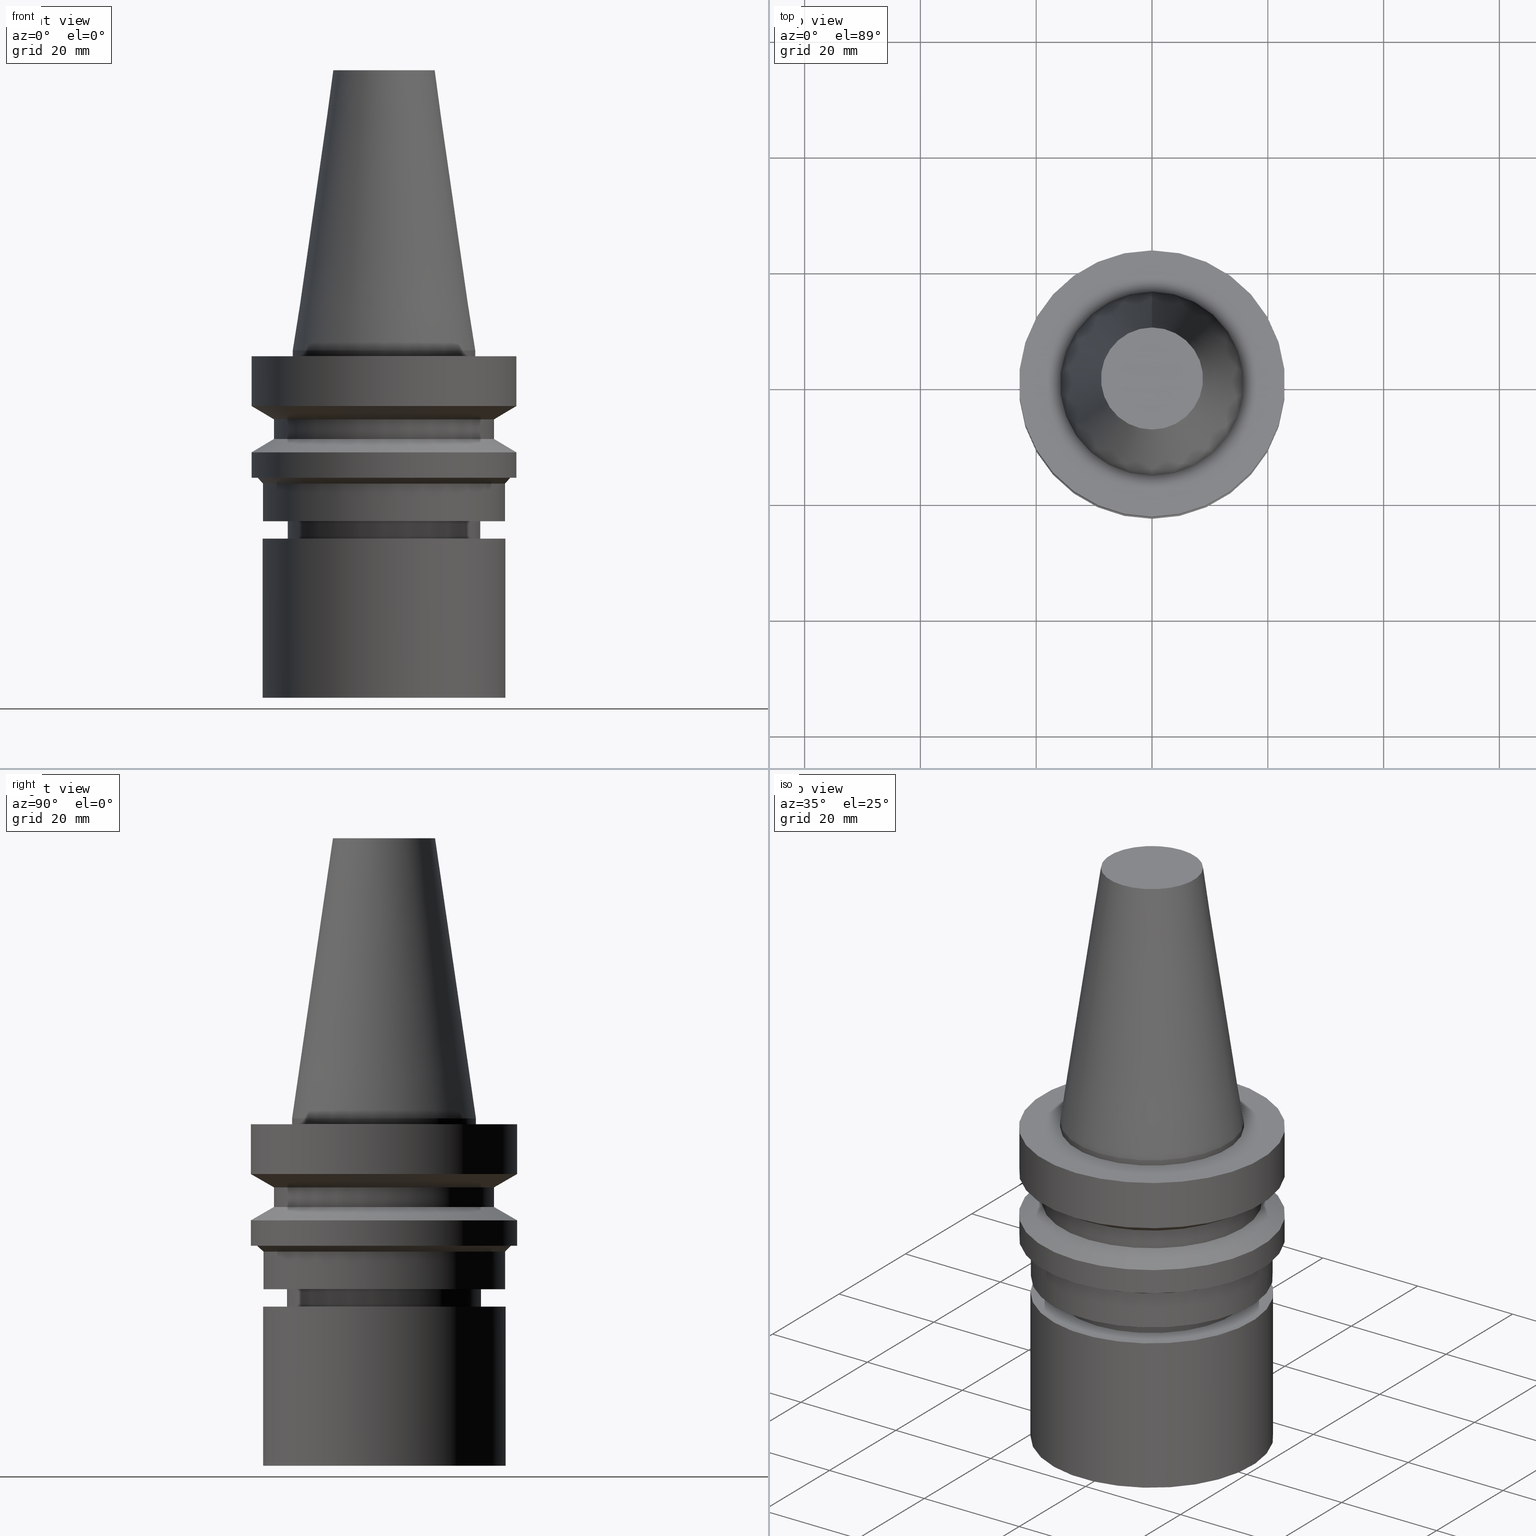
[diagram: canonical four-view strip — front | top / right | iso, engineering-drawing reading convention]
A machine part, canonical four-view strip (front | top / right | iso — engineering-drawing reading convention). The complete STEP part file that produces these views, byte-faithful:
ISO-10303-21;
HEADER;
FILE_DESCRIPTION((''),'1');
FILE_NAME('V:/90_\X2\53D65F9730C730FC30BF\X0\/00_\X2\6DE18DEF30C730FC30BF\X0\/ALL/BBT-BKUS\X2\FF76FF80FF9BFF78FF9E752852A05DE556F3\X0\201801/BBT30-MEGAER/BBT30-MEGAER25-60NL.stp','2018-02-02T07:22:10',(''),(''),'Spatial Interop R21 SP3','Kubotek KeyCreator 2011 V10.0.2 (22737)',' ');
FILE_SCHEMA(('automotive_design'));
ENDSEC;
DATA;
#1=MECHANICAL_DESIGN_GEOMETRIC_PRESENTATION_REPRESENTATION(' ',(#14,#15,#16,#17,#18,#19,#20,#21,#22,#23,#24,#25,#26,#27,#28,#29,#30,#31,#32,#33,#34,#35,#36,#37,#38,#39,#40,#41,#42,#43,#44,#45,#46,#47,#48,#49,#50,#51,#52,#53,#54,#55),#10);
#2=PRODUCT_DEFINITION_CONTEXT('',#56,'design');
#3=APPLICATION_PROTOCOL_DEFINITION('INTERNATIONAL STANDARD','automotive_design',1994,#56);
#4=PRODUCT_CATEGORY_RELATIONSHIP('NONE','NONE',#57,#58);
#5=SHAPE_DEFINITION_REPRESENTATION(#59,#60);
#6=PRODUCT_DEFINITION_CONTEXT('',#61,'design');
#7=APPLICATION_PROTOCOL_DEFINITION('INTERNATIONAL STANDARD','automotive_design',1994,#61);
#8=PRODUCT_CATEGORY_RELATIONSHIP('NONE','NONE',#62,#63);
#9=SHAPE_DEFINITION_REPRESENTATION(#64,#65);
#10= (GEOMETRIC_REPRESENTATION_CONTEXT(3)GLOBAL_UNCERTAINTY_ASSIGNED_CONTEXT((#68))GLOBAL_UNIT_ASSIGNED_CONTEXT((#70,#71,#72))REPRESENTATION_CONTEXT('NONE','WORKSPACE'));
#14=STYLED_ITEM('',(#74,#75),#76);
#15=STYLED_ITEM('',(#77,#78),#79);
#16=STYLED_ITEM('',(#80,#81),#82);
#17=STYLED_ITEM('',(#83,#84),#85);
#18=STYLED_ITEM('',(#86),#87);
#19=STYLED_ITEM('',(#88,#89),#90);
#20=STYLED_ITEM('',(#91,#92),#93);
#21=STYLED_ITEM('',(#94,#95),#96);
#22=STYLED_ITEM('',(#97,#98),#99);
#23=STYLED_ITEM('',(#100),#101);
#24=STYLED_ITEM('',(#102),#103);
#25=STYLED_ITEM('',(#104,#105),#106);
#26=STYLED_ITEM('',(#107),#108);
#27=STYLED_ITEM('',(#109),#110);
#28=STYLED_ITEM('',(#111,#112),#113);
#29=STYLED_ITEM('',(#114),#115);
#30=STYLED_ITEM('',(#116,#117),#118);
#31=STYLED_ITEM('',(#119,#120),#121);
#32=STYLED_ITEM('',(#122,#123),#124);
#33=STYLED_ITEM('',(#125),#126);
#34=STYLED_ITEM('',(#127),#128);
#35=STYLED_ITEM('',(#129,#130),#131);
#36=STYLED_ITEM('',(#132,#133),#134);
#37=STYLED_ITEM('',(#135),#136);
#38=STYLED_ITEM('',(#137,#138),#139);
#39=STYLED_ITEM('',(#140),#141);
#40=STYLED_ITEM('',(#142),#143);
#41=STYLED_ITEM('',(#144),#145);
#42=STYLED_ITEM('',(#146,#147),#148);
#43=STYLED_ITEM('',(#149),#150);
#44=STYLED_ITEM('',(#151),#152);
#45=STYLED_ITEM('',(#153,#154),#155);
#46=STYLED_ITEM('',(#156,#157),#158);
#47=STYLED_ITEM('',(#159,#160),#161);
#48=STYLED_ITEM('',(#162),#163);
#49=STYLED_ITEM('',(#164),#165);
#50=STYLED_ITEM('',(#166,#167),#168);
#51=STYLED_ITEM('',(#169),#170);
#52=STYLED_ITEM('',(#171),#172);
#53=STYLED_ITEM('',(#173,#174),#175);
#54=STYLED_ITEM('',(#176),#177);
#55=STYLED_ITEM('',(#178,#179),#180);
#56=APPLICATION_CONTEXT(' ');
#57=PRODUCT_CATEGORY('part','NONE');
#58=PRODUCT_RELATED_PRODUCT_CATEGORY('detail',' ',(#181));
#59=PRODUCT_DEFINITION_SHAPE('NONE','NONE',#182);
#60=ADVANCED_BREP_SHAPE_REPRESENTATION('Unnamed[1]',(#79,#183),#10);
#61=APPLICATION_CONTEXT(' ');
#62=PRODUCT_CATEGORY('part','NONE');
#63=PRODUCT_RELATED_PRODUCT_CATEGORY('detail',' ',(#184));
#64=PRODUCT_DEFINITION_SHAPE('NONE','NONE',#185);
#65=ADVANCED_BREP_SHAPE_REPRESENTATION('Unnamed[1]',(#99,#186),#10);
#68=UNCERTAINTY_MEASURE_WITH_UNIT(LENGTH_MEASURE(1.0E-006),#70,'','');
#70= (CONVERSION_BASED_UNIT('MILLIMETRE',#189)LENGTH_UNIT()NAMED_UNIT(#192));
#71= (NAMED_UNIT(#194)PLANE_ANGLE_UNIT()SI_UNIT($,.RADIAN.));
#72= (NAMED_UNIT(#194)SOLID_ANGLE_UNIT()SI_UNIT($,.STERADIAN.));
#74=PRESENTATION_STYLE_ASSIGNMENT((#200));
#75=PRESENTATION_STYLE_ASSIGNMENT((#201));
#76=ADVANCED_FACE('Unnamed[1]',(#202,#203),#204,.T.);
#77=PRESENTATION_STYLE_ASSIGNMENT((#205));
#78=PRESENTATION_STYLE_ASSIGNMENT((#206));
#79=MANIFOLD_SOLID_BREP('Unnamed[1]',#207);
#80=PRESENTATION_STYLE_ASSIGNMENT((#208));
#81=PRESENTATION_STYLE_ASSIGNMENT((#209));
#82=ADVANCED_FACE('Unnamed[1]',(#210),#211,.T.);
#83=PRESENTATION_STYLE_ASSIGNMENT((#212));
#84=PRESENTATION_STYLE_ASSIGNMENT((#213));
#85=ADVANCED_FACE('Unnamed[1]',(#214,#215),#216,.T.);
#86=PRESENTATION_STYLE_ASSIGNMENT((#217));
#87=EDGE_CURVE('Unnamed[1]',#218,#218,#219,.T.);
#88=PRESENTATION_STYLE_ASSIGNMENT((#220));
#89=PRESENTATION_STYLE_ASSIGNMENT((#221));
#90=ADVANCED_FACE('Unnamed[1]',(#222,#223),#224,.T.);
#91=PRESENTATION_STYLE_ASSIGNMENT((#225));
#92=PRESENTATION_STYLE_ASSIGNMENT((#226));
#93=ADVANCED_FACE('Unnamed[1]',(#227,#228),#229,.T.);
#94=PRESENTATION_STYLE_ASSIGNMENT((#230));
#95=PRESENTATION_STYLE_ASSIGNMENT((#231));
#96=ADVANCED_FACE('Unnamed[1]',(#232,#233),#234,.T.);
#97=PRESENTATION_STYLE_ASSIGNMENT((#235));
#98=PRESENTATION_STYLE_ASSIGNMENT((#236));
#99=MANIFOLD_SOLID_BREP('Unnamed[1]',#237);
#100=PRESENTATION_STYLE_ASSIGNMENT((#238));
#101=EDGE_CURVE('Unnamed[1]',#239,#239,#240,.T.);
#102=PRESENTATION_STYLE_ASSIGNMENT((#241));
#103=EDGE_CURVE('Unnamed[1]',#242,#242,#243,.T.);
#104=PRESENTATION_STYLE_ASSIGNMENT((#244));
#105=PRESENTATION_STYLE_ASSIGNMENT((#245));
#106=ADVANCED_FACE('Unnamed[1]',(#246,#247),#248,.T.);
#107=PRESENTATION_STYLE_ASSIGNMENT((#249));
#108=EDGE_CURVE('Unnamed[1]',#250,#250,#251,.T.);
#109=PRESENTATION_STYLE_ASSIGNMENT((#252));
#110=EDGE_CURVE('Unnamed[1]',#253,#253,#254,.T.);
#111=PRESENTATION_STYLE_ASSIGNMENT((#255));
#112=PRESENTATION_STYLE_ASSIGNMENT((#256));
#113=ADVANCED_FACE('Unnamed[1]',(#257),#258,.T.);
#114=PRESENTATION_STYLE_ASSIGNMENT((#259));
#115=EDGE_CURVE('Unnamed[1]',#260,#260,#261,.T.);
#116=PRESENTATION_STYLE_ASSIGNMENT((#262));
#117=PRESENTATION_STYLE_ASSIGNMENT((#263));
#118=ADVANCED_FACE('Unnamed[1]',(#264,#265),#266,.T.);
#119=PRESENTATION_STYLE_ASSIGNMENT((#267));
#120=PRESENTATION_STYLE_ASSIGNMENT((#268));
#121=ADVANCED_FACE('Unnamed[1]',(#269,#270),#271,.T.);
#122=PRESENTATION_STYLE_ASSIGNMENT((#272));
#123=PRESENTATION_STYLE_ASSIGNMENT((#273));
#124=ADVANCED_FACE('Unnamed[1]',(#274,#275),#276,.T.);
#125=PRESENTATION_STYLE_ASSIGNMENT((#277));
#126=EDGE_CURVE('Unnamed[1]',#278,#278,#279,.T.);
#127=PRESENTATION_STYLE_ASSIGNMENT((#280));
#128=EDGE_CURVE('Unnamed[1]',#281,#281,#282,.T.);
#129=PRESENTATION_STYLE_ASSIGNMENT((#283));
#130=PRESENTATION_STYLE_ASSIGNMENT((#284));
#131=ADVANCED_FACE('Unnamed[1]',(#285),#286,.T.);
#132=PRESENTATION_STYLE_ASSIGNMENT((#287));
#133=PRESENTATION_STYLE_ASSIGNMENT((#288));
#134=ADVANCED_FACE('Unnamed[1]',(#289,#290),#291,.T.);
#135=PRESENTATION_STYLE_ASSIGNMENT((#292));
#136=EDGE_CURVE('Unnamed[1]',#293,#293,#294,.T.);
#137=PRESENTATION_STYLE_ASSIGNMENT((#295));
#138=PRESENTATION_STYLE_ASSIGNMENT((#296));
#139=ADVANCED_FACE('Unnamed[1]',(#297,#298),#299,.T.);
#140=PRESENTATION_STYLE_ASSIGNMENT((#300));
#141=EDGE_CURVE('Unnamed[1]',#301,#301,#302,.T.);
#142=PRESENTATION_STYLE_ASSIGNMENT((#303));
#143=EDGE_CURVE('Unnamed[1]',#304,#304,#305,.T.);
#144=PRESENTATION_STYLE_ASSIGNMENT((#306));
#145=EDGE_CURVE('Unnamed[1]',#307,#307,#308,.T.);
#146=PRESENTATION_STYLE_ASSIGNMENT((#309));
#147=PRESENTATION_STYLE_ASSIGNMENT((#310));
#148=ADVANCED_FACE('Unnamed[1]',(#311,#312),#313,.T.);
#149=PRESENTATION_STYLE_ASSIGNMENT((#314));
#150=EDGE_CURVE('Unnamed[1]',#315,#315,#316,.T.);
#151=PRESENTATION_STYLE_ASSIGNMENT((#317));
#152=EDGE_CURVE('Unnamed[1]',#318,#318,#319,.T.);
#153=PRESENTATION_STYLE_ASSIGNMENT((#320));
#154=PRESENTATION_STYLE_ASSIGNMENT((#321));
#155=ADVANCED_FACE('Unnamed[1]',(#322,#323),#324,.T.);
#156=PRESENTATION_STYLE_ASSIGNMENT((#325));
#157=PRESENTATION_STYLE_ASSIGNMENT((#326));
#158=ADVANCED_FACE('Unnamed[1]',(#327,#328),#329,.T.);
#159=PRESENTATION_STYLE_ASSIGNMENT((#330));
#160=PRESENTATION_STYLE_ASSIGNMENT((#331));
#161=ADVANCED_FACE('Unnamed[1]',(#332),#333,.T.);
#162=PRESENTATION_STYLE_ASSIGNMENT((#334));
#163=EDGE_CURVE('Unnamed[1]',#335,#335,#336,.T.);
#164=PRESENTATION_STYLE_ASSIGNMENT((#337));
#165=EDGE_CURVE('Unnamed[1]',#338,#338,#339,.T.);
#166=PRESENTATION_STYLE_ASSIGNMENT((#340));
#167=PRESENTATION_STYLE_ASSIGNMENT((#341));
#168=ADVANCED_FACE('Unnamed[1]',(#342,#343),#344,.T.);
#169=PRESENTATION_STYLE_ASSIGNMENT((#345));
#170=EDGE_CURVE('Unnamed[1]',#346,#346,#347,.T.);
#171=PRESENTATION_STYLE_ASSIGNMENT((#348));
#172=EDGE_CURVE('Unnamed[1]',#349,#349,#350,.T.);
#173=PRESENTATION_STYLE_ASSIGNMENT((#351));
#174=PRESENTATION_STYLE_ASSIGNMENT((#352));
#175=ADVANCED_FACE('Unnamed[1]',(#353,#354),#355,.T.);
#176=PRESENTATION_STYLE_ASSIGNMENT((#356));
#177=EDGE_CURVE('Unnamed[1]',#357,#357,#358,.T.);
#178=PRESENTATION_STYLE_ASSIGNMENT((#359));
#179=PRESENTATION_STYLE_ASSIGNMENT((#360));
#180=ADVANCED_FACE('Unnamed[1]',(#361,#362),#363,.T.);
#181=PRODUCT('Unnamed[1]','Unnamed[1]','PART-Unnamed[1]-DESC',(#364));
#182=PRODUCT_DEFINITION('NONE','NONE',#365,#2);
#183=AXIS2_PLACEMENT_3D('',#366,#367,#368);
#184=PRODUCT('Unnamed[1]','Unnamed[1]','PART-Unnamed[1]-DESC',(#369));
#185=PRODUCT_DEFINITION('NONE','NONE',#370,#6);
#186=AXIS2_PLACEMENT_3D('',#371,#372,#373);
#189=LENGTH_MEASURE_WITH_UNIT(LENGTH_MEASURE(1.0),#374);
#192=DIMENSIONAL_EXPONENTS(1.0,0.0,0.0,0.0,0.0,0.0,0.0);
#194=DIMENSIONAL_EXPONENTS(0.0,0.0,0.0,0.0,0.0,0.0,0.0);
#200=SURFACE_STYLE_USAGE(.BOTH.,#375);
#201=CURVE_STYLE('',#376,POSITIVE_LENGTH_MEASURE(1000.0),#377);
#202=FACE_BOUND('',#378,.T.);
#203=FACE_BOUND('',#379,.T.);
#204=CONICAL_SURFACE('',#380,12.3457500009933,0.144815870013618);
#205=SURFACE_STYLE_USAGE(.BOTH.,#381);
#206=CURVE_STYLE('',#382,POSITIVE_LENGTH_MEASURE(1000.0),#383);
#207=CLOSED_SHELL('',(#113,#76,#175,#118,#121,#155,#139,#90,#106,#180,#168,#148,#93,#85,#134,#124,#96,#131));
#208=SURFACE_STYLE_USAGE(.BOTH.,#384);
#209=CURVE_STYLE('',#385,POSITIVE_LENGTH_MEASURE(1000.0),#386);
#210=FACE_OUTER_BOUND('',#387,.T.);
#211=PLANE('',#388);
#212=SURFACE_STYLE_USAGE(.BOTH.,#389);
#213=CURVE_STYLE('',#390,POSITIVE_LENGTH_MEASURE(1000.0),#391);
#214=FACE_BOUND('',#392,.T.);
#215=FACE_BOUND('',#393,.T.);
#216=CYLINDRICAL_SURFACE('',#394,16.7499999999962);
#217=CURVE_STYLE('',#395,POSITIVE_LENGTH_MEASURE(1000.0),#396);
#218=VERTEX_POINT('',#397);
#219=CIRCLE('',#398,15.875);
#220=SURFACE_STYLE_USAGE(.BOTH.,#399);
#221=CURVE_STYLE('',#400,POSITIVE_LENGTH_MEASURE(1000.0),#401);
#222=FACE_BOUND('',#402,.T.);
#223=FACE_BOUND('',#403,.T.);
#224=CONICAL_SURFACE('',#404,21.0,1.04719755058882);
#225=SURFACE_STYLE_USAGE(.BOTH.,#405);
#226=CURVE_STYLE('',#406,POSITIVE_LENGTH_MEASURE(1000.0),#407);
#227=FACE_BOUND('',#408,.T.);
#228=FACE_OUTER_BOUND('',#409,.T.);
#229=PLANE('',#410);
#230=SURFACE_STYLE_USAGE(.BOTH.,#411);
#231=CURVE_STYLE('',#412,POSITIVE_LENGTH_MEASURE(1000.0),#413);
#232=FACE_BOUND('',#414,.T.);
#233=FACE_BOUND('',#415,.T.);
#234=CONICAL_SURFACE('',#416,15.4500000000003,0.523598775598054);
#235=SURFACE_STYLE_USAGE(.BOTH.,#417);
#236=CURVE_STYLE('',#418,POSITIVE_LENGTH_MEASURE(1000.0),#419);
#237=CLOSED_SHELL('',(#161,#82,#158));
#238=CURVE_STYLE('',#420,POSITIVE_LENGTH_MEASURE(1000.0),#421);
#239=VERTEX_POINT('',#422);
#240=CIRCLE('',#423,21.9270816115706);
#241=CURVE_STYLE('',#424,POSITIVE_LENGTH_MEASURE(1000.0),#425);
#242=VERTEX_POINT('',#426);
#243=CIRCLE('',#427,15.875);
#244=SURFACE_STYLE_USAGE(.BOTH.,#428);
#245=CURVE_STYLE('',#429,POSITIVE_LENGTH_MEASURE(1000.0),#430);
#246=FACE_BOUND('',#431,.T.);
#247=FACE_BOUND('',#432,.T.);
#248=CYLINDRICAL_SURFACE('',#433,23.0);
#249=CURVE_STYLE('',#434,POSITIVE_LENGTH_MEASURE(1000.0),#435);
#250=VERTEX_POINT('',#436);
#251=CIRCLE('',#437,23.0);
#252=CURVE_STYLE('',#438,POSITIVE_LENGTH_MEASURE(1000.0),#439);
#253=VERTEX_POINT('',#440);
#254=CIRCLE('',#441,16.7499999999907);
#255=SURFACE_STYLE_USAGE(.BOTH.,#442);
#256=CURVE_STYLE('',#443,POSITIVE_LENGTH_MEASURE(1000.0),#444);
#257=FACE_OUTER_BOUND('',#445,.T.);
#258=PLANE('',#446);
#259=CURVE_STYLE('',#447,POSITIVE_LENGTH_MEASURE(1000.0),#448);
#260=VERTEX_POINT('',#449);
#261=CIRCLE('',#450,20.9270816115704);
#262=SURFACE_STYLE_USAGE(.BOTH.,#451);
#263=CURVE_STYLE('',#452,POSITIVE_LENGTH_MEASURE(1000.0),#453);
#264=FACE_OUTER_BOUND('',#454,.T.);
#265=FACE_BOUND('',#455,.T.);
#266=PLANE('',#456);
#267=SURFACE_STYLE_USAGE(.BOTH.,#457);
#268=CURVE_STYLE('',#458,POSITIVE_LENGTH_MEASURE(1000.0),#459);
#269=FACE_BOUND('',#460,.T.);
#270=FACE_BOUND('',#461,.T.);
#271=CYLINDRICAL_SURFACE('',#462,23.0);
#272=SURFACE_STYLE_USAGE(.BOTH.,#463);
#273=CURVE_STYLE('',#464,POSITIVE_LENGTH_MEASURE(1000.0),#465);
#274=FACE_BOUND('',#466,.T.);
#275=FACE_BOUND('',#467,.T.);
#276=CYLINDRICAL_SURFACE('',#468,16.0);
#277=CURVE_STYLE('',#469,POSITIVE_LENGTH_MEASURE(1000.0),#470);
#278=VERTEX_POINT('',#471);
#279=CIRCLE('',#472,8.81650000198669);
#280=CURVE_STYLE('',#473,POSITIVE_LENGTH_MEASURE(1000.0),#474);
#281=VERTEX_POINT('',#475);
#282=CIRCLE('',#476,14.9000000000005);
#283=SURFACE_STYLE_USAGE(.BOTH.,#477);
#284=CURVE_STYLE('',#478,POSITIVE_LENGTH_MEASURE(1000.0),#479);
#285=FACE_OUTER_BOUND('',#480,.T.);
#286=PLANE('',#481);
#287=SURFACE_STYLE_USAGE(.BOTH.,#482);
#288=CURVE_STYLE('',#483,POSITIVE_LENGTH_MEASURE(1000.0),#484);
#289=FACE_BOUND('',#485,.T.);
#290=FACE_BOUND('',#486,.T.);
#291=CONICAL_SURFACE('',#487,16.3750000000008,1.0471975512007);
#292=CURVE_STYLE('',#488,POSITIVE_LENGTH_MEASURE(1000.0),#489);
#293=VERTEX_POINT('',#490);
#294=CIRCLE('',#491,19.0);
#295=SURFACE_STYLE_USAGE(.BOTH.,#492);
#296=CURVE_STYLE('',#493,POSITIVE_LENGTH_MEASURE(1000.0),#494);
#297=FACE_BOUND('',#495,.T.);
#298=FACE_BOUND('',#496,.T.);
#299=CYLINDRICAL_SURFACE('',#497,19.0);
#300=CURVE_STYLE('',#498,POSITIVE_LENGTH_MEASURE(1000.0),#499);
#301=VERTEX_POINT('',#500);
#302=CIRCLE('',#501,23.0);
#303=CURVE_STYLE('',#502,POSITIVE_LENGTH_MEASURE(1000.0),#503);
#304=VERTEX_POINT('',#504);
#305=CIRCLE('',#505,20.9270816115704);
#306=CURVE_STYLE('',#506,POSITIVE_LENGTH_MEASURE(1000.0),#507);
#307=VERTEX_POINT('',#508);
#308=CIRCLE('',#509,16.7500000000017);
#309=SURFACE_STYLE_USAGE(.BOTH.,#510);
#310=CURVE_STYLE('',#511,POSITIVE_LENGTH_MEASURE(1000.0),#512);
#311=FACE_BOUND('',#513,.T.);
#312=FACE_BOUND('',#514,.T.);
#313=CYLINDRICAL_SURFACE('',#515,20.9270816115704);
#314=CURVE_STYLE('',#516,POSITIVE_LENGTH_MEASURE(1000.0),#517);
#315=VERTEX_POINT('',#518);
#316=CIRCLE('',#519,16.0);
#317=CURVE_STYLE('',#520,POSITIVE_LENGTH_MEASURE(1000.0),#521);
#318=VERTEX_POINT('',#522);
#319=CIRCLE('',#523,21.0);
#320=SURFACE_STYLE_USAGE(.BOTH.,#524);
#321=CURVE_STYLE('',#525,POSITIVE_LENGTH_MEASURE(1000.0),#526);
#322=FACE_BOUND('',#527,.T.);
#323=FACE_BOUND('',#528,.T.);
#324=CONICAL_SURFACE('',#529,21.0,1.04719755058881);
#325=SURFACE_STYLE_USAGE(.BOTH.,#530);
#326=CURVE_STYLE('',#531,POSITIVE_LENGTH_MEASURE(1000.0),#532);
#327=FACE_BOUND('',#533,.T.);
#328=FACE_BOUND('',#534,.T.);
#329=CYLINDRICAL_SURFACE('',#535,21.0);
#330=SURFACE_STYLE_USAGE(.BOTH.,#536);
#331=CURVE_STYLE('',#537,POSITIVE_LENGTH_MEASURE(1000.0),#538);
#332=FACE_OUTER_BOUND('',#539,.T.);
#333=PLANE('',#540);
#334=CURVE_STYLE('',#541,POSITIVE_LENGTH_MEASURE(1000.0),#542);
#335=VERTEX_POINT('',#543);
#336=CIRCLE('',#544,19.0);
#337=CURVE_STYLE('',#545,POSITIVE_LENGTH_MEASURE(1000.0),#546);
#338=VERTEX_POINT('',#547);
#339=CIRCLE('',#548,23.0);
#340=SURFACE_STYLE_USAGE(.BOTH.,#549);
#341=CURVE_STYLE('',#550,POSITIVE_LENGTH_MEASURE(1000.0),#551);
#342=FACE_BOUND('',#552,.T.);
#343=FACE_BOUND('',#553,.T.);
#344=CONICAL_SURFACE('',#554,21.4270816115705,0.785398163397448);
#345=CURVE_STYLE('',#555,POSITIVE_LENGTH_MEASURE(1000.0),#556);
#346=VERTEX_POINT('',#557);
#347=CIRCLE('',#558,23.0);
#348=CURVE_STYLE('',#559,POSITIVE_LENGTH_MEASURE(1000.0),#560);
#349=VERTEX_POINT('',#561);
#350=CIRCLE('',#562,16.0);
#351=SURFACE_STYLE_USAGE(.BOTH.,#563);
#352=CURVE_STYLE('',#564,POSITIVE_LENGTH_MEASURE(1000.0),#565);
#353=FACE_BOUND('',#566,.T.);
#354=FACE_BOUND('',#567,.T.);
#355=CYLINDRICAL_SURFACE('',#568,15.875);
#356=CURVE_STYLE('',#569,POSITIVE_LENGTH_MEASURE(1000.0),#570);
#357=VERTEX_POINT('',#571);
#358=CIRCLE('',#572,21.0);
#359=SURFACE_STYLE_USAGE(.BOTH.,#573);
#360=CURVE_STYLE('',#574,POSITIVE_LENGTH_MEASURE(1000.0),#575);
#361=FACE_BOUND('',#576,.T.);
#362=FACE_OUTER_BOUND('',#577,.T.);
#363=PLANE('',#578);
#364=PRODUCT_CONTEXT('',#56,'mechanical');
#365=PRODUCT_DEFINITION_FORMATION_WITH_SPECIFIED_SOURCE(' ','NONE',#181,.NOT_KNOWN.);
#366=CARTESIAN_POINT('',(0.0,0.0,0.0));
#367=DIRECTION('',(0.0,0.0,1.0));
#368=DIRECTION('',(1.0,0.0,0.0));
#369=PRODUCT_CONTEXT('',#61,'mechanical');
#370=PRODUCT_DEFINITION_FORMATION_WITH_SPECIFIED_SOURCE(' ','NONE',#184,.NOT_KNOWN.);
#371=CARTESIAN_POINT('',(0.0,0.0,0.0));
#372=DIRECTION('',(0.0,0.0,1.0));
#373=DIRECTION('',(1.0,0.0,0.0));
#374= (NAMED_UNIT(#192)LENGTH_UNIT()SI_UNIT(.MILLI.,.METRE.));
#375=SURFACE_SIDE_STYLE('',(#580));
#376=DRAUGHTING_PRE_DEFINED_CURVE_FONT('continuous');
#377=COLOUR_RGB('',0.0,1.0,0.0);
#378=EDGE_LOOP('',(#581));
#379=EDGE_LOOP('',(#582));
#380=AXIS2_PLACEMENT_3D('',#583,#584,#585);
#381=SURFACE_SIDE_STYLE('',(#586));
#382=DRAUGHTING_PRE_DEFINED_CURVE_FONT('continuous');
#383=COLOUR_RGB('',0.0,1.0,0.0);
#384=SURFACE_SIDE_STYLE('',(#587));
#385=DRAUGHTING_PRE_DEFINED_CURVE_FONT('continuous');
#386=COLOUR_RGB('',0.0,1.0,0.0);
#387=EDGE_LOOP('',(#588));
#388=AXIS2_PLACEMENT_3D('',#589,#590,#591);
#389=SURFACE_SIDE_STYLE('',(#592));
#390=DRAUGHTING_PRE_DEFINED_CURVE_FONT('continuous');
#391=COLOUR_RGB('',0.0,1.0,0.0);
#392=EDGE_LOOP('',(#593));
#393=EDGE_LOOP('',(#594));
#394=AXIS2_PLACEMENT_3D('',#595,#596,#597);
#395=DRAUGHTING_PRE_DEFINED_CURVE_FONT('continuous');
#396=COLOUR_RGB('',0.0,1.0,0.0);
#397=CARTESIAN_POINT('',(-1.95674482349743E-031,15.875,1.94412679364642E-015));
#398=AXIS2_PLACEMENT_3D('',#598,#599,#600);
#399=SURFACE_SIDE_STYLE('',(#601));
#400=DRAUGHTING_PRE_DEFINED_CURVE_FONT('continuous');
#401=COLOUR_RGB('',0.0,1.0,0.0);
#402=EDGE_LOOP('',(#602));
#403=EDGE_LOOP('',(#603));
#404=AXIS2_PLACEMENT_3D('',#604,#605,#606);
#405=SURFACE_SIDE_STYLE('',(#607));
#406=DRAUGHTING_PRE_DEFINED_CURVE_FONT('continuous');
#407=COLOUR_RGB('',0.0,1.0,0.0);
#408=EDGE_LOOP('',(#608));
#409=EDGE_LOOP('',(#609));
#410=AXIS2_PLACEMENT_3D('',#610,#611,#612);
#411=SURFACE_SIDE_STYLE('',(#613));
#412=DRAUGHTING_PRE_DEFINED_CURVE_FONT('continuous');
#413=COLOUR_RGB('',0.0,1.0,0.0);
#414=EDGE_LOOP('',(#614));
#415=EDGE_LOOP('',(#615));
#416=AXIS2_PLACEMENT_3D('',#616,#617,#618);
#417=SURFACE_SIDE_STYLE('',(#619));
#418=DRAUGHTING_PRE_DEFINED_CURVE_FONT('continuous');
#419=COLOUR_RGB('',0.0,1.0,0.0);
#420=DRAUGHTING_PRE_DEFINED_CURVE_FONT('continuous');
#421=COLOUR_RGB('',0.0,1.0,0.0);
#422=CARTESIAN_POINT('',(1.34711147906209E-015,21.9270816115706,-22.0));
#423=AXIS2_PLACEMENT_3D('',#620,#621,#622);
#424=DRAUGHTING_PRE_DEFINED_CURVE_FONT('continuous');
#425=COLOUR_RGB('',0.0,1.0,0.0);
#426=CARTESIAN_POINT('',(6.12323399573675E-017,15.875,-0.999999999999998));
#427=AXIS2_PLACEMENT_3D('',#623,#624,#625);
#428=SURFACE_SIDE_STYLE('',(#626));
#429=DRAUGHTING_PRE_DEFINED_CURVE_FONT('continuous');
#430=COLOUR_RGB('',0.0,1.0,0.0);
#431=EDGE_LOOP('',(#627));
#432=EDGE_LOOP('',(#628));
#433=AXIS2_PLACEMENT_3D('',#629,#630,#631);
#434=DRAUGHTING_PRE_DEFINED_CURVE_FONT('continuous');
#435=COLOUR_RGB('',0.0,1.0,0.0);
#436=CARTESIAN_POINT('',(5.87830463590729E-016,23.0,-9.59999999999999));
#437=AXIS2_PLACEMENT_3D('',#632,#633,#634);
#438=DRAUGHTING_PRE_DEFINED_CURVE_FONT('continuous');
#439=COLOUR_RGB('',0.0,1.0,0.0);
#440=CARTESIAN_POINT('',(1.8063540287423E-015,16.7499999999907,-29.4999999999992));
#441=AXIS2_PLACEMENT_3D('',#635,#636,#637);
#442=SURFACE_SIDE_STYLE('',(#638));
#443=DRAUGHTING_PRE_DEFINED_CURVE_FONT('continuous');
#444=COLOUR_RGB('',0.0,1.0,0.0);
#445=EDGE_LOOP('',(#639));
#446=AXIS2_PLACEMENT_3D('',#640,#641,#642);
#447=DRAUGHTING_PRE_DEFINED_CURVE_FONT('continuous');
#448=COLOUR_RGB('',0.0,1.0,0.0);
#449=CARTESIAN_POINT('',(1.80635402874234E-015,20.9270816115704,-29.4999999999999));
#450=AXIS2_PLACEMENT_3D('',#643,#644,#645);
#451=SURFACE_SIDE_STYLE('',(#646));
#452=DRAUGHTING_PRE_DEFINED_CURVE_FONT('continuous');
#453=COLOUR_RGB('',0.0,1.0,0.0);
#454=EDGE_LOOP('',(#647));
#455=EDGE_LOOP('',(#648));
#456=AXIS2_PLACEMENT_3D('',#649,#650,#651);
#457=SURFACE_SIDE_STYLE('',(#652));
#458=DRAUGHTING_PRE_DEFINED_CURVE_FONT('continuous');
#459=COLOUR_RGB('',0.0,1.0,0.0);
#460=EDGE_LOOP('',(#653));
#461=EDGE_LOOP('',(#654));
#462=AXIS2_PLACEMENT_3D('',#655,#656,#657);
#463=SURFACE_SIDE_STYLE('',(#658));
#464=DRAUGHTING_PRE_DEFINED_CURVE_FONT('continuous');
#465=COLOUR_RGB('',0.0,1.0,0.0);
#466=EDGE_LOOP('',(#659));
#467=EDGE_LOOP('',(#660));
#468=AXIS2_PLACEMENT_3D('',#661,#662,#663);
#469=DRAUGHTING_PRE_DEFINED_CURVE_FONT('continuous');
#470=COLOUR_RGB('',0.0,1.0,0.0);
#471=CARTESIAN_POINT('',(-2.96364525393659E-015,8.81650000198669,48.4));
#472=AXIS2_PLACEMENT_3D('',#664,#665,#666);
#473=DRAUGHTING_PRE_DEFINED_CURVE_FONT('continuous');
#474=COLOUR_RGB('',0.0,1.0,0.0);
#475=CARTESIAN_POINT('',(3.04937052987693E-015,14.9000000000005,-49.8000000000004));
#476=AXIS2_PLACEMENT_3D('',#667,#668,#669);
#477=SURFACE_SIDE_STYLE('',(#670));
#478=DRAUGHTING_PRE_DEFINED_CURVE_FONT('continuous');
#479=COLOUR_RGB('',0.0,1.0,0.0);
#480=EDGE_LOOP('',(#671));
#481=AXIS2_PLACEMENT_3D('',#672,#673,#674);
#482=SURFACE_SIDE_STYLE('',(#675));
#483=DRAUGHTING_PRE_DEFINED_CURVE_FONT('continuous');
#484=COLOUR_RGB('',0.0,1.0,0.0);
#485=EDGE_LOOP('',(#676));
#486=EDGE_LOOP('',(#677));
#487=AXIS2_PLACEMENT_3D('',#678,#679,#680);
#488=DRAUGHTING_PRE_DEFINED_CURVE_FONT('continuous');
#489=COLOUR_RGB('',0.0,1.0,0.0);
#490=CARTESIAN_POINT('',(9.36279151221199E-016,19.0,-15.29059892));
#491=AXIS2_PLACEMENT_3D('',#681,#682,#683);
#492=SURFACE_SIDE_STYLE('',(#684));
#493=DRAUGHTING_PRE_DEFINED_CURVE_FONT('continuous');
#494=COLOUR_RGB('',0.0,1.0,0.0);
#495=EDGE_LOOP('',(#685));
#496=EDGE_LOOP('',(#686));
#497=AXIS2_PLACEMENT_3D('',#687,#688,#689);
#498=DRAUGHTING_PRE_DEFINED_CURVE_FONT('continuous');
#499=COLOUR_RGB('',0.0,1.0,0.0);
#500=CARTESIAN_POINT('',(1.34711147906209E-015,23.0,-22.0));
#501=AXIS2_PLACEMENT_3D('',#690,#691,#692);
#502=DRAUGHTING_PRE_DEFINED_CURVE_FONT('continuous');
#503=COLOUR_RGB('',0.0,1.0,0.0);
#504=CARTESIAN_POINT('',(1.40834381901946E-015,20.9270816115704,-23.0000000000001));
#505=AXIS2_PLACEMENT_3D('',#693,#694,#695);
#506=DRAUGHTING_PRE_DEFINED_CURVE_FONT('continuous');
#507=COLOUR_RGB('',0.0,1.0,0.0);
#508=CARTESIAN_POINT('',(2.17174729353663E-015,16.7500000000017,-35.467324865401));
#509=AXIS2_PLACEMENT_3D('',#696,#697,#698);
#510=SURFACE_SIDE_STYLE('',(#699));
#511=DRAUGHTING_PRE_DEFINED_CURVE_FONT('continuous');
#512=COLOUR_RGB('',0.0,1.0,0.0);
#513=EDGE_LOOP('',(#700));
#514=EDGE_LOOP('',(#701));
#515=AXIS2_PLACEMENT_3D('',#702,#703,#704);
#516=DRAUGHTING_PRE_DEFINED_CURVE_FONT('continuous');
#517=COLOUR_RGB('',0.0,1.0,0.0);
#518=CARTESIAN_POINT('',(2.19826167450456E-015,16.0,-35.90033756729));
#519=AXIS2_PLACEMENT_3D('',#705,#706,#707);
#520=DRAUGHTING_PRE_DEFINED_CURVE_FONT('continuous');
#521=COLOUR_RGB('',0.0,1.0,0.0);
#522=CARTESIAN_POINT('',(3.67394039744206E-015,21.0,-60.0));
#523=AXIS2_PLACEMENT_3D('',#708,#709,#710);
#524=SURFACE_SIDE_STYLE('',(#711));
#525=DRAUGHTING_PRE_DEFINED_CURVE_FONT('continuous');
#526=COLOUR_RGB('',0.0,1.0,0.0);
#527=EDGE_LOOP('',(#712));
#528=EDGE_LOOP('',(#713));
#529=AXIS2_PLACEMENT_3D('',#714,#715,#716);
#530=SURFACE_SIDE_STYLE('',(#717));
#531=DRAUGHTING_PRE_DEFINED_CURVE_FONT('continuous');
#532=COLOUR_RGB('',0.0,1.0,0.0);
#533=EDGE_LOOP('',(#718));
#534=EDGE_LOOP('',(#719));
#535=AXIS2_PLACEMENT_3D('',#720,#721,#722);
#536=SURFACE_SIDE_STYLE('',(#723));
#537=DRAUGHTING_PRE_DEFINED_CURVE_FONT('continuous');
#538=COLOUR_RGB('',0.0,1.0,0.0);
#539=EDGE_LOOP('',(#724));
#540=AXIS2_PLACEMENT_3D('',#725,#726,#727);
#541=DRAUGHTING_PRE_DEFINED_CURVE_FONT('continuous');
#542=COLOUR_RGB('',0.0,1.0,0.0);
#543=CARTESIAN_POINT('',(7.29240495619202E-016,19.0,-11.90940108));
#544=AXIS2_PLACEMENT_3D('',#728,#729,#730);
#545=DRAUGHTING_PRE_DEFINED_CURVE_FONT('continuous');
#546=COLOUR_RGB('',0.0,1.0,0.0);
#547=CARTESIAN_POINT('',(1.07768918324967E-015,23.0,-17.6));
#548=AXIS2_PLACEMENT_3D('',#731,#732,#733);
#549=SURFACE_SIDE_STYLE('',(#734));
#550=DRAUGHTING_PRE_DEFINED_CURVE_FONT('continuous');
#551=COLOUR_RGB('',0.0,1.0,0.0);
#552=EDGE_LOOP('',(#735));
#553=EDGE_LOOP('',(#736));
#554=AXIS2_PLACEMENT_3D('',#737,#738,#739);
#555=DRAUGHTING_PRE_DEFINED_CURVE_FONT('continuous');
#556=COLOUR_RGB('',0.0,1.0,0.0);
#557=CARTESIAN_POINT('',(6.12323399573674E-017,23.0,-0.999999999999997));
#558=AXIS2_PLACEMENT_3D('',#740,#741,#742);
#559=DRAUGHTING_PRE_DEFINED_CURVE_FONT('continuous');
#560=COLOUR_RGB('',0.0,1.0,0.0);
#561=CARTESIAN_POINT('',(2.93270725361718E-015,16.0,-47.8947441116744));
#562=AXIS2_PLACEMENT_3D('',#743,#744,#745);
#563=SURFACE_SIDE_STYLE('',(#746));
#564=DRAUGHTING_PRE_DEFINED_CURVE_FONT('continuous');
#565=COLOUR_RGB('',0.0,1.0,0.0);
#566=EDGE_LOOP('',(#747));
#567=EDGE_LOOP('',(#748));
#568=AXIS2_PLACEMENT_3D('',#749,#750,#751);
#569=DRAUGHTING_PRE_DEFINED_CURVE_FONT('continuous');
#570=COLOUR_RGB('',0.0,1.0,0.0);
#571=CARTESIAN_POINT('',(1.99005104861445E-015,21.0,-32.5));
#572=AXIS2_PLACEMENT_3D('',#752,#753,#754);
#573=SURFACE_SIDE_STYLE('',(#755));
#574=DRAUGHTING_PRE_DEFINED_CURVE_FONT('continuous');
#575=COLOUR_RGB('',0.0,1.0,0.0);
#576=EDGE_LOOP('',(#756));
#577=EDGE_LOOP('',(#757));
#578=AXIS2_PLACEMENT_3D('',#758,#759,#760);
#580=SURFACE_STYLE_FILL_AREA(#761);
#581=ORIENTED_EDGE('',*,*,#87,.F.);
#582=ORIENTED_EDGE('',*,*,#126,.T.);
#583=CARTESIAN_POINT('',(-1.4818226269683E-015,-2.96364525393659E-015,24.2));
#584=DIRECTION('',(6.12323399573677E-017,1.22464679914735E-016,-1.0));
#585=DIRECTION('',(-1.23259516440783E-032,1.0,1.22464679914735E-016));
#586=SURFACE_STYLE_FILL_AREA(#762);
#587=SURFACE_STYLE_FILL_AREA(#763);
#588=ORIENTED_EDGE('',*,*,#177,.F.);
#589=CARTESIAN_POINT('',(1.99005104861445E-015,10.5,-32.5));
#590=DIRECTION('',(-6.12323399573677E-017,-1.22464679914735E-016,1.0));
#591=DIRECTION('',(1.23259516440783E-032,-1.0,-1.22464679914735E-016));
#592=SURFACE_STYLE_FILL_AREA(#764);
#593=ORIENTED_EDGE('',*,*,#145,.F.);
#594=ORIENTED_EDGE('',*,*,#110,.T.);
#595=CARTESIAN_POINT('',(1.98905066113946E-015,3.97810132227893E-015,-32.4836624327001));
#596=DIRECTION('',(6.12323399573676E-017,1.22464679914735E-016,-1.0));
#597=DIRECTION('',(-1.23259516440783E-032,1.0,1.22464679914735E-016));
#598=CARTESIAN_POINT('',(0.0,0.0,0.0));
#599=DIRECTION('',(6.12323399573677E-017,1.22464679914735E-016,-1.0));
#600=DIRECTION('',(-1.23259516440783E-032,1.0,1.22464679914735E-016));
#601=SURFACE_STYLE_FILL_AREA(#765);
#602=ORIENTED_EDGE('',*,*,#165,.F.);
#603=ORIENTED_EDGE('',*,*,#136,.T.);
#604=CARTESIAN_POINT('',(1.00698416723543E-015,2.01396833447087E-015,-16.44529946));
#605=DIRECTION('',(6.12323399573677E-017,1.22464679914735E-016,-1.0));
#606=DIRECTION('',(-1.23259516440783E-032,1.0,1.22464679914735E-016));
#607=SURFACE_STYLE_FILL_AREA(#766);
#608=ORIENTED_EDGE('',*,*,#110,.F.);
#609=ORIENTED_EDGE('',*,*,#115,.T.);
#610=CARTESIAN_POINT('',(1.80635402874232E-015,18.8385408057806,-29.4999999999996));
#611=DIRECTION('',(6.12323399573677E-017,-1.72534175496133E-013,-1.0));
#612=DIRECTION('',(1.05598441355126E-029,1.0,-1.72534175496133E-013));
#613=SURFACE_STYLE_FILL_AREA(#767);
#614=ORIENTED_EDGE('',*,*,#128,.F.);
#615=ORIENTED_EDGE('',*,*,#172,.T.);
#616=CARTESIAN_POINT('',(2.99103889174706E-015,5.98207778349411E-015,-48.8473720558374));
#617=DIRECTION('',(-6.12323399573677E-017,-1.22464679914735E-016,1.0));
#618=DIRECTION('',(-1.23259516440783E-032,1.0,1.22464679914735E-016));
#619=SURFACE_STYLE_FILL_AREA(#768);
#620=CARTESIAN_POINT('',(1.34711147906209E-015,2.69422295812418E-015,-22.0));
#621=DIRECTION('',(6.12323399573677E-017,1.22464679914735E-016,-1.0));
#622=DIRECTION('',(-1.23259516440783E-032,1.0,1.22464679914735E-016));
#623=CARTESIAN_POINT('',(6.12323399573677E-017,1.22464679914735E-016,-1.0));
#624=DIRECTION('',(6.12323399573677E-017,1.22464679914735E-016,-1.0));
#625=DIRECTION('',(-1.23259516440783E-032,1.0,1.22464679914735E-016));
#626=SURFACE_STYLE_FILL_AREA(#769);
#627=ORIENTED_EDGE('',*,*,#141,.F.);
#628=ORIENTED_EDGE('',*,*,#165,.T.);
#629=CARTESIAN_POINT('',(1.21240033115588E-015,2.42480066231176E-015,-19.8));
#630=DIRECTION('',(6.12323399573677E-017,1.22464679914735E-016,-1.0));
#631=DIRECTION('',(-1.23259516440783E-032,1.0,1.22464679914735E-016));
#632=CARTESIAN_POINT('',(5.87830463590729E-016,1.17566092718146E-015,-9.59999999999999));
#633=DIRECTION('',(6.12323399573677E-017,1.22464679914735E-016,-1.0));
#634=DIRECTION('',(-1.23259516440783E-032,1.0,1.22464679914735E-016));
#635=CARTESIAN_POINT('',(1.8063540287423E-015,3.6127080574846E-015,-29.4999999999992));
#636=DIRECTION('',(6.12323399573677E-017,1.22464679914735E-016,-1.0));
#637=DIRECTION('',(-1.23259516440783E-032,1.0,1.22464679914735E-016));
#638=SURFACE_STYLE_FILL_AREA(#770);
#639=ORIENTED_EDGE('',*,*,#126,.F.);
#640=CARTESIAN_POINT('',(-2.96364525393659E-015,4.40825000099334,48.4));
#641=DIRECTION('',(-6.12323399573677E-017,-1.22464679914735E-016,1.0));
#642=DIRECTION('',(1.23259516440783E-032,-1.0,-1.22464679914735E-016));
#643=CARTESIAN_POINT('',(1.80635402874234E-015,3.61270805748468E-015,-29.4999999999999));
#644=DIRECTION('',(6.12323399573677E-017,1.22464679914735E-016,-1.0));
#645=DIRECTION('',(-1.23259516440783E-032,1.0,1.22464679914735E-016));
#646=SURFACE_STYLE_FILL_AREA(#771);
#647=ORIENTED_EDGE('',*,*,#170,.F.);
#648=ORIENTED_EDGE('',*,*,#103,.T.);
#649=CARTESIAN_POINT('',(6.12323399573674E-017,19.4375,-0.999999999999998));
#650=DIRECTION('',(-6.12323399573677E-017,-1.22464679914735E-016,1.0));
#651=DIRECTION('',(1.23259516440783E-032,-1.0,-1.22464679914735E-016));
#652=SURFACE_STYLE_FILL_AREA(#772);
#653=ORIENTED_EDGE('',*,*,#108,.F.);
#654=ORIENTED_EDGE('',*,*,#170,.T.);
#655=CARTESIAN_POINT('',(3.24531401774048E-016,6.49062803548097E-016,-5.3));
#656=DIRECTION('',(6.12323399573677E-017,1.22464679914735E-016,-1.0));
#657=DIRECTION('',(-1.23259516440783E-032,1.0,1.22464679914735E-016));
#658=SURFACE_STYLE_FILL_AREA(#773);
#659=ORIENTED_EDGE('',*,*,#172,.F.);
#660=ORIENTED_EDGE('',*,*,#150,.T.);
#661=CARTESIAN_POINT('',(2.56548446406087E-015,5.13096892812174E-015,-41.8975408394822));
#662=DIRECTION('',(6.12323399573677E-017,1.22464679914735E-016,-1.0));
#663=DIRECTION('',(-1.23259516440783E-032,1.0,1.22464679914735E-016));
#664=CARTESIAN_POINT('',(-2.96364525393659E-015,-5.92729050787319E-015,48.4));
#665=DIRECTION('',(6.12323399573677E-017,1.22464679914735E-016,-1.0));
#666=DIRECTION('',(-1.23259516440783E-032,1.0,1.22464679914735E-016));
#667=CARTESIAN_POINT('',(3.04937052987693E-015,6.09874105975386E-015,-49.8000000000004));
#668=DIRECTION('',(6.12323399573677E-017,1.22464679914735E-016,-1.0));
#669=DIRECTION('',(-1.23259516440783E-032,1.0,1.22464679914735E-016));
#670=SURFACE_STYLE_FILL_AREA(#774);
#671=ORIENTED_EDGE('',*,*,#128,.T.);
#672=CARTESIAN_POINT('',(3.04937052987692E-015,7.45000000000027,-49.8000000000002));
#673=DIRECTION('',(6.12323399573677E-017,-2.70593715203029E-014,-1.0));
#674=DIRECTION('',(1.65208148323313E-030,1.0,-2.70593715203029E-014));
#675=SURFACE_STYLE_FILL_AREA(#775);
#676=ORIENTED_EDGE('',*,*,#150,.F.);
#677=ORIENTED_EDGE('',*,*,#145,.T.);
#678=CARTESIAN_POINT('',(2.1850044840206E-015,4.37000896804119E-015,-35.6838312163455));
#679=DIRECTION('',(-6.12323399573677E-017,-1.22464679914735E-016,1.0));
#680=DIRECTION('',(-1.23259516440783E-032,1.0,1.22464679914735E-016));
#681=CARTESIAN_POINT('',(9.36279151221199E-016,1.8725583024424E-015,-15.29059892));
#682=DIRECTION('',(6.12323399573677E-017,1.22464679914735E-016,-1.0));
#683=DIRECTION('',(-1.23259516440783E-032,1.0,1.22464679914735E-016));
#684=SURFACE_STYLE_FILL_AREA(#776);
#685=ORIENTED_EDGE('',*,*,#136,.F.);
#686=ORIENTED_EDGE('',*,*,#163,.T.);
#687=CARTESIAN_POINT('',(8.32759823420201E-016,1.6655196468404E-015,-13.6));
#688=DIRECTION('',(6.12323399573677E-017,1.22464679914735E-016,-1.0));
#689=DIRECTION('',(-1.23259516440783E-032,1.0,1.22464679914735E-016));
#690=CARTESIAN_POINT('',(1.34711147906209E-015,2.69422295812418E-015,-22.0));
#691=DIRECTION('',(6.12323399573677E-017,1.22464679914735E-016,-1.0));
#692=DIRECTION('',(-1.23259516440783E-032,1.0,1.22464679914735E-016));
#693=CARTESIAN_POINT('',(1.40834381901946E-015,2.81668763803893E-015,-23.0000000000001));
#694=DIRECTION('',(6.12323399573677E-017,1.22464679914735E-016,-1.0));
#695=DIRECTION('',(-1.23259516440783E-032,1.0,1.22464679914735E-016));
#696=CARTESIAN_POINT('',(2.17174729353663E-015,4.34349458707326E-015,-35.467324865401));
#697=DIRECTION('',(6.12323399573677E-017,1.22464679914735E-016,-1.0));
#698=DIRECTION('',(-1.23259516440783E-032,1.0,1.22464679914735E-016));
#699=SURFACE_STYLE_FILL_AREA(#777);
#700=ORIENTED_EDGE('',*,*,#115,.F.);
#701=ORIENTED_EDGE('',*,*,#143,.T.);
#702=CARTESIAN_POINT('',(1.6073489238809E-015,3.21469784776181E-015,-26.25));
#703=DIRECTION('',(6.12323399573677E-017,1.22464679914735E-016,-1.0));
#704=DIRECTION('',(-1.23259516440783E-032,1.0,1.22464679914735E-016));
#705=CARTESIAN_POINT('',(2.19826167450456E-015,4.39652334900912E-015,-35.90033756729));
#706=DIRECTION('',(6.12323399573677E-017,1.22464679914735E-016,-1.0));
#707=DIRECTION('',(-1.23259516440783E-032,1.0,1.22464679914735E-016));
#708=CARTESIAN_POINT('',(3.67394039744206E-015,7.34788079488412E-015,-60.0));
#709=DIRECTION('',(6.12323399573677E-017,1.22464679914735E-016,-1.0));
#710=DIRECTION('',(-1.23259516440783E-032,1.0,1.22464679914735E-016));
#711=SURFACE_STYLE_FILL_AREA(#778);
#712=ORIENTED_EDGE('',*,*,#163,.F.);
#713=ORIENTED_EDGE('',*,*,#108,.T.);
#714=CARTESIAN_POINT('',(6.58535479604966E-016,1.31707095920993E-015,-10.75470054));
#715=DIRECTION('',(-6.12323399573677E-017,-1.22464679914735E-016,1.0));
#716=DIRECTION('',(-1.23259516440783E-032,1.0,1.22464679914735E-016));
#717=SURFACE_STYLE_FILL_AREA(#779);
#718=ORIENTED_EDGE('',*,*,#152,.F.);
#719=ORIENTED_EDGE('',*,*,#177,.T.);
#720=CARTESIAN_POINT('',(2.83199572302825E-015,5.66399144605651E-015,-46.25));
#721=DIRECTION('',(6.12323399573677E-017,1.22464679914735E-016,-1.0));
#722=DIRECTION('',(-1.23259516440783E-032,1.0,1.22464679914735E-016));
#723=SURFACE_STYLE_FILL_AREA(#780);
#724=ORIENTED_EDGE('',*,*,#152,.T.);
#725=CARTESIAN_POINT('',(3.67394039744206E-015,10.5,-60.0));
#726=DIRECTION('',(6.12323399573677E-017,1.22464679914735E-016,-1.0));
#727=DIRECTION('',(-1.23259516440783E-032,1.0,1.22464679914735E-016));
#728=CARTESIAN_POINT('',(7.29240495619202E-016,1.4584809912384E-015,-11.90940108));
#729=DIRECTION('',(6.12323399573677E-017,1.22464679914735E-016,-1.0));
#730=DIRECTION('',(-1.23259516440783E-032,1.0,1.22464679914735E-016));
#731=CARTESIAN_POINT('',(1.07768918324967E-015,2.15537836649934E-015,-17.6));
#732=DIRECTION('',(6.12323399573677E-017,1.22464679914735E-016,-1.0));
#733=DIRECTION('',(-1.23259516440783E-032,1.0,1.22464679914735E-016));
#734=SURFACE_STYLE_FILL_AREA(#781);
#735=ORIENTED_EDGE('',*,*,#143,.F.);
#736=ORIENTED_EDGE('',*,*,#101,.T.);
#737=CARTESIAN_POINT('',(1.37772764904078E-015,2.75545529808155E-015,-22.5000000000001));
#738=DIRECTION('',(-6.12323399573677E-017,-1.22464679914735E-016,1.0));
#739=DIRECTION('',(-1.23259516440783E-032,1.0,1.22464679914735E-016));
#740=CARTESIAN_POINT('',(6.12323399573677E-017,1.22464679914735E-016,-1.0));
#741=DIRECTION('',(6.12323399573677E-017,1.22464679914735E-016,-1.0));
#742=DIRECTION('',(-1.23259516440783E-032,1.0,1.22464679914735E-016));
#743=CARTESIAN_POINT('',(2.93270725361718E-015,5.86541450723436E-015,-47.8947441116744));
#744=DIRECTION('',(6.12323399573677E-017,1.22464679914735E-016,-1.0));
#745=DIRECTION('',(-1.23259516440783E-032,1.0,1.22464679914735E-016));
#746=SURFACE_STYLE_FILL_AREA(#782);
#747=ORIENTED_EDGE('',*,*,#103,.F.);
#748=ORIENTED_EDGE('',*,*,#87,.T.);
#749=CARTESIAN_POINT('',(3.06161699786838E-017,6.12323399573676E-017,-0.5));
#750=DIRECTION('',(6.12323399573677E-017,1.22464679914735E-016,-1.0));
#751=DIRECTION('',(-1.23259516440783E-032,1.0,1.22464679914735E-016));
#752=CARTESIAN_POINT('',(1.99005104861445E-015,3.9801020972289E-015,-32.5));
#753=DIRECTION('',(6.12323399573677E-017,1.22464679914735E-016,-1.0));
#754=DIRECTION('',(-1.23259516440783E-032,1.0,1.22464679914735E-016));
#755=SURFACE_STYLE_FILL_AREA(#783);
#756=ORIENTED_EDGE('',*,*,#101,.F.);
#757=ORIENTED_EDGE('',*,*,#141,.T.);
#758=CARTESIAN_POINT('',(1.34711147906209E-015,22.4635408057853,-22.0));
#759=DIRECTION('',(6.12323399573677E-017,1.22464679914735E-016,-1.0));
#760=DIRECTION('',(-1.23259516440783E-032,1.0,1.22464679914735E-016));
#761=FILL_AREA_STYLE('',(#784));
#762=FILL_AREA_STYLE('',(#785));
#763=FILL_AREA_STYLE('',(#786));
#764=FILL_AREA_STYLE('',(#787));
#765=FILL_AREA_STYLE('',(#788));
#766=FILL_AREA_STYLE('',(#789));
#767=FILL_AREA_STYLE('',(#790));
#768=FILL_AREA_STYLE('',(#791));
#769=FILL_AREA_STYLE('',(#792));
#770=FILL_AREA_STYLE('',(#793));
#771=FILL_AREA_STYLE('',(#794));
#772=FILL_AREA_STYLE('',(#795));
#773=FILL_AREA_STYLE('',(#796));
#774=FILL_AREA_STYLE('',(#797));
#775=FILL_AREA_STYLE('',(#798));
#776=FILL_AREA_STYLE('',(#799));
#777=FILL_AREA_STYLE('',(#800));
#778=FILL_AREA_STYLE('',(#801));
#779=FILL_AREA_STYLE('',(#802));
#780=FILL_AREA_STYLE('',(#803));
#781=FILL_AREA_STYLE('',(#804));
#782=FILL_AREA_STYLE('',(#805));
#783=FILL_AREA_STYLE('',(#806));
#784=FILL_AREA_STYLE_COLOUR('',#807);
#785=FILL_AREA_STYLE_COLOUR('',#808);
#786=FILL_AREA_STYLE_COLOUR('',#809);
#787=FILL_AREA_STYLE_COLOUR('',#810);
#788=FILL_AREA_STYLE_COLOUR('',#811);
#789=FILL_AREA_STYLE_COLOUR('',#812);
#790=FILL_AREA_STYLE_COLOUR('',#813);
#791=FILL_AREA_STYLE_COLOUR('',#814);
#792=FILL_AREA_STYLE_COLOUR('',#815);
#793=FILL_AREA_STYLE_COLOUR('',#816);
#794=FILL_AREA_STYLE_COLOUR('',#817);
#795=FILL_AREA_STYLE_COLOUR('',#818);
#796=FILL_AREA_STYLE_COLOUR('',#819);
#797=FILL_AREA_STYLE_COLOUR('',#820);
#798=FILL_AREA_STYLE_COLOUR('',#821);
#799=FILL_AREA_STYLE_COLOUR('',#822);
#800=FILL_AREA_STYLE_COLOUR('',#823);
#801=FILL_AREA_STYLE_COLOUR('',#824);
#802=FILL_AREA_STYLE_COLOUR('',#825);
#803=FILL_AREA_STYLE_COLOUR('',#826);
#804=FILL_AREA_STYLE_COLOUR('',#827);
#805=FILL_AREA_STYLE_COLOUR('',#828);
#806=FILL_AREA_STYLE_COLOUR('',#829);
#807=COLOUR_RGB('',0.0,1.0,0.0);
#808=COLOUR_RGB('',0.0,1.0,0.0);
#809=COLOUR_RGB('',0.0,1.0,0.0);
#810=COLOUR_RGB('',0.0,1.0,0.0);
#811=COLOUR_RGB('',0.0,1.0,0.0);
#812=COLOUR_RGB('',0.0,1.0,0.0);
#813=COLOUR_RGB('',0.0,1.0,0.0);
#814=COLOUR_RGB('',0.0,1.0,0.0);
#815=COLOUR_RGB('',0.0,1.0,0.0);
#816=COLOUR_RGB('',0.0,1.0,0.0);
#817=COLOUR_RGB('',0.0,1.0,0.0);
#818=COLOUR_RGB('',0.0,1.0,0.0);
#819=COLOUR_RGB('',0.0,1.0,0.0);
#820=COLOUR_RGB('',0.0,1.0,0.0);
#821=COLOUR_RGB('',0.0,1.0,0.0);
#822=COLOUR_RGB('',0.0,1.0,0.0);
#823=COLOUR_RGB('',0.0,1.0,0.0);
#824=COLOUR_RGB('',0.0,1.0,0.0);
#825=COLOUR_RGB('',0.0,1.0,0.0);
#826=COLOUR_RGB('',0.0,1.0,0.0);
#827=COLOUR_RGB('',0.0,1.0,0.0);
#828=COLOUR_RGB('',0.0,1.0,0.0);
#829=COLOUR_RGB('',0.0,1.0,0.0);
ENDSEC;
END-ISO-10303-21;
